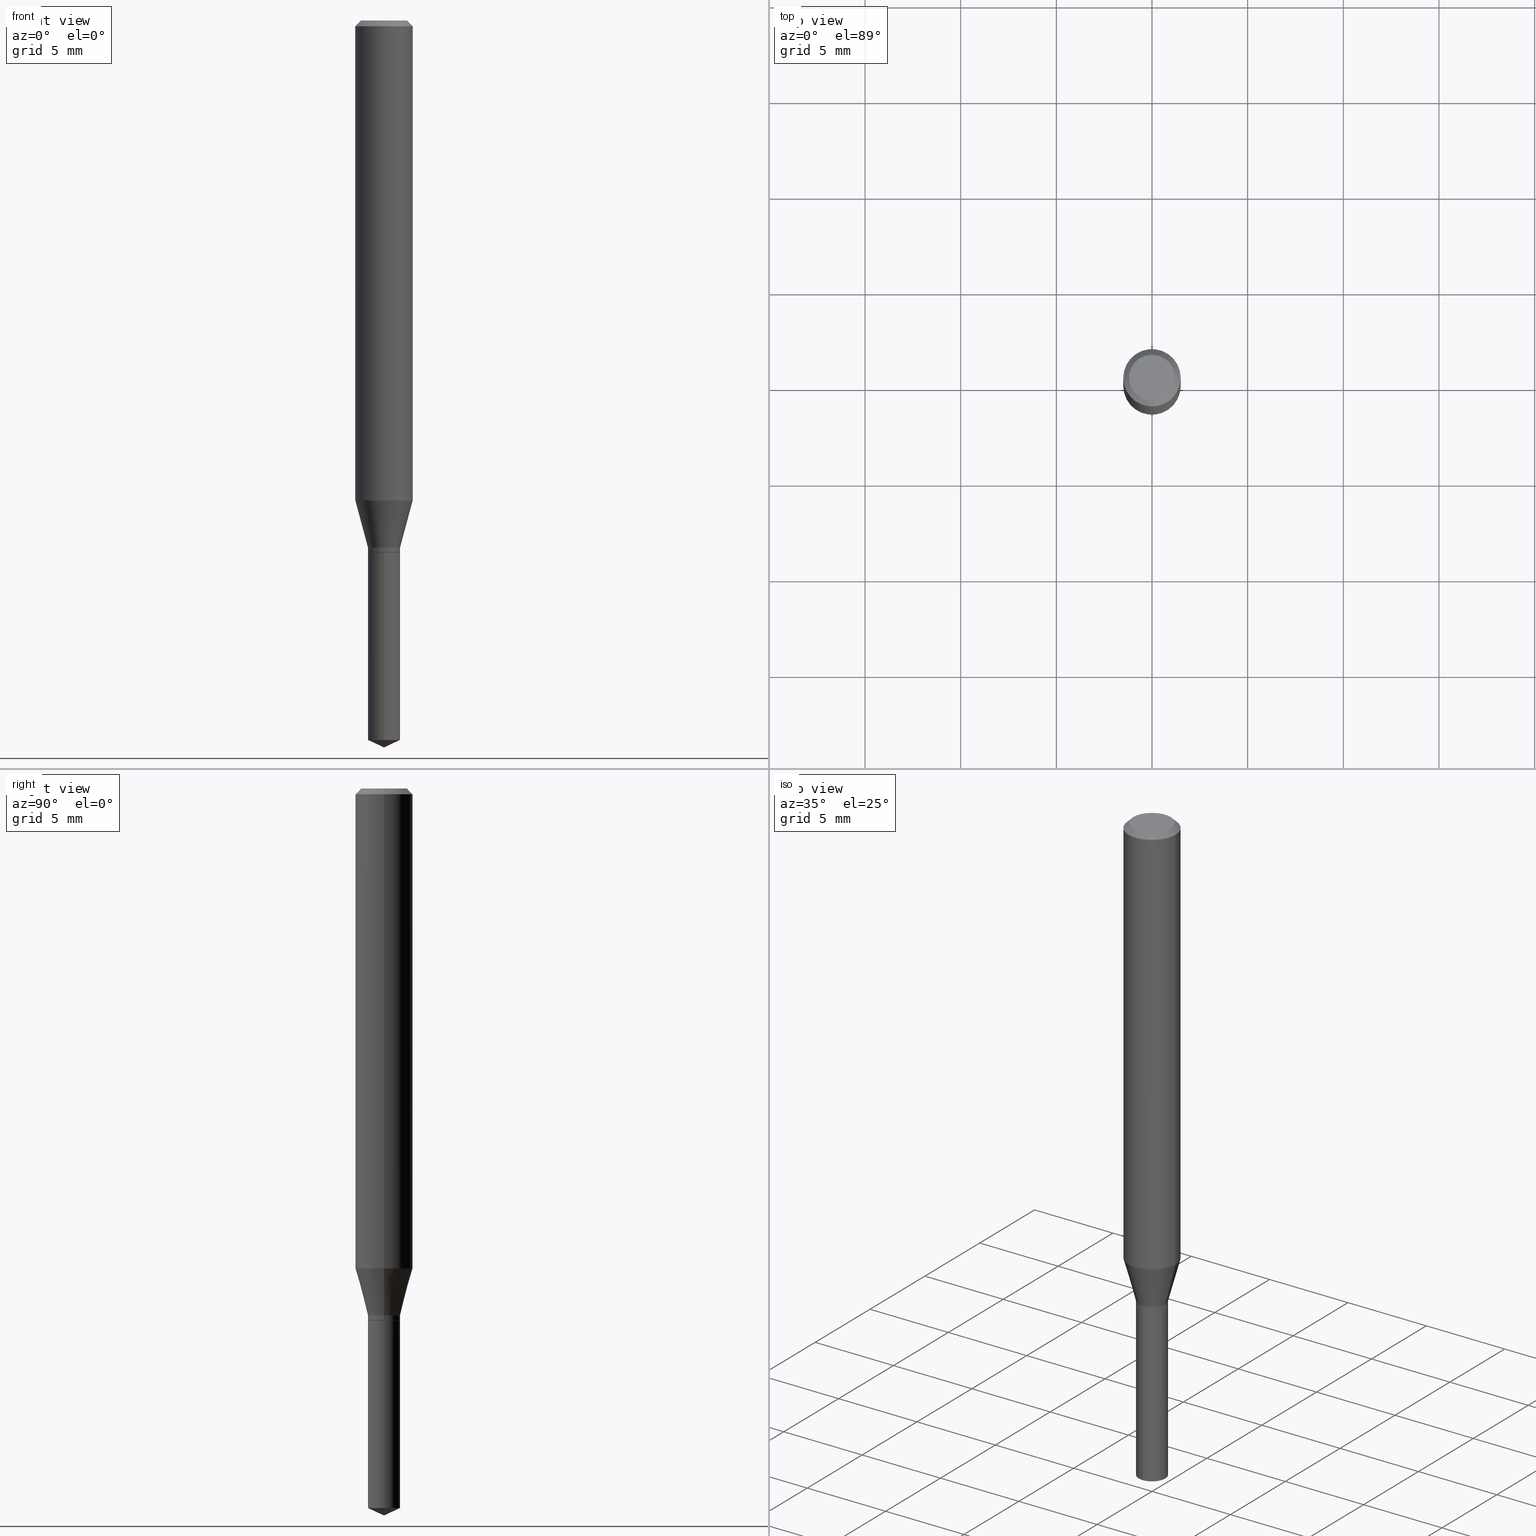
[diagram: canonical four-view strip — front | top / right | iso, engineering-drawing reading convention]
A machine part, canonical four-view strip (front | top / right | iso — engineering-drawing reading convention). The complete STEP part file that produces these views, byte-faithful:
ISO-10303-21;
HEADER;
FILE_DESCRIPTION (( 'STEP AP203' ),
    '1' );
FILE_NAME ('07562.STEP',
    '2024-04-23T22:59:34',
    ( '' ),
    ( '' ),
    'SwSTEP 2.0',
    'SolidWorks 2023',
    '' );
FILE_SCHEMA (( 'CONFIG_CONTROL_DESIGN' ));
ENDSEC;

DATA;
#1 = CYLINDRICAL_SURFACE ( 'NONE', #43, 0.03305000000000000299 ) ;
#2 = ORIENTED_EDGE ( 'NONE', *, *, #405, .F. ) ;
#3 = AXIS2_PLACEMENT_3D ( 'NONE', #215, #369, #325 ) ;
#4 = CIRCLE ( 'NONE', #400, 0.05905000000000011628 ) ;
#5 = CARTESIAN_POINT ( 'NONE',  ( -0.05905000000000006077, 4.195754854663395916E-16, -2.904631170795524694E-30 ) ) ;
#6 = DIRECTION ( 'NONE',  ( -6.982962677686265922E-15, -1.000000000000000000, 4.132901654560155873E-15 ) ) ;
#7 = ADVANCED_FACE ( 'NONE', ( #118 ), #80, .T. ) ;
#8 = DIRECTION ( 'NONE',  ( -1.000000000000000000, 6.982962677686266711E-15, 0.000000000000000000 ) ) ;
#9 = APPROVAL_ROLE ( '' ) ;
#10 = LINE ( 'NONE', #111, #487 ) ;
#11 = EDGE_CURVE ( 'NONE', #413, #382, #137, .T. ) ;
#12 = AXIS2_PLACEMENT_3D ( 'NONE', #395, #313, #77 ) ;
#13 = DIRECTION ( 'NONE',  ( -1.000000000000000000, 6.982962677686266711E-15, 0.000000000000000000 ) ) ;
#14 = ORIENTED_EDGE ( 'NONE', *, *, #135, .F. ) ;
#15 = PRODUCT_RELATED_PRODUCT_CATEGORY ( 'detail', '', ( #122 ) ) ;
#16 = CARTESIAN_POINT ( 'NONE',  ( 2.415063507530197396E-29, -3.448070630603002833E-15, -0.9875666790032088249 ) ) ;
#17 = CARTESIAN_POINT ( 'NONE',  ( 0.03305000000000000299, -2.307869164975311041E-16, 1.611576424400557166E-30 ) ) ;
#18 = DIRECTION ( 'NONE',  ( 1.000000000000000000, -6.982962677686266711E-15, 4.876185090822587894E-29 ) ) ;
#19 = AXIS2_PLACEMENT_3D ( 'NONE', #332, #216, #303 ) ;
#20 = CC_DESIGN_PERSON_AND_ORGANIZATION_ASSIGNMENT ( #385, #171, ( #445 ) ) ;
#21 = CARTESIAN_POINT ( 'NONE',  ( 2.652355467188399034E-29, -3.786860660109275425E-15, -1.084600000000000009 ) ) ;
#22 = APPLICATION_CONTEXT ( 'configuration controlled 3d designs of mechanical parts and assemblies' ) ;
#23 = CARTESIAN_POINT ( 'NONE',  ( -0.03255000000000000254, -3.587495437699799190E-15, -1.094500000000000028 ) ) ;
#24 = ORIENTED_EDGE ( 'NONE', *, *, #317, .T. ) ;
#25 = ADVANCED_BREP_SHAPE_REPRESENTATION ( '07562', ( #265, #88, #327 ), #437 ) ;
#26 = APPROVAL ( #459, 'UNSPECIFIED' ) ;
#27 = CARTESIAN_POINT ( 'NONE',  ( 0.000000000000000000, 0.000000000000000000, 0.000000000000000000 ) ) ;
#28 = AXIS2_PLACEMENT_3D ( 'NONE', #60, #246, #175 ) ;
#29 = ORIENTED_EDGE ( 'NONE', *, *, #48, .F. ) ;
#30 = CARTESIAN_POINT ( 'NONE',  ( -0.05904999999999999832, -1.325077027141029999E-15, -0.01181000000000007218 ) ) ;
#31 = ORIENTED_EDGE ( 'NONE', *, *, #342, .F. ) ;
#32 = CARTESIAN_POINT ( 'NONE',  ( 0.03305000000000000299, -4.017647576606806874E-15, -1.084600000000000009 ) ) ;
#33 = ORIENTED_EDGE ( 'NONE', *, *, #457, .T. ) ;
#34 = DIRECTION ( 'NONE',  ( -2.445468806185136597E-29, 3.491481338843145583E-15, 1.000000000000000000 ) ) ;
#35 = ORIENTED_EDGE ( 'NONE', *, *, #167, .T. ) ;
#36 = AXIS2_PLACEMENT_3D ( 'NONE', #468, #165, #281 ) ;
#37 = VERTEX_POINT ( 'NONE', #235 ) ;
#38 = LINE ( 'NONE', #5, #69 ) ;
#39 = CARTESIAN_POINT ( 'NONE',  ( 2.676565608369632355E-29, -3.821426325363822773E-15, -1.094500000000000028 ) ) ;
#40 = MECHANICAL_CONTEXT ( 'NONE', #402, 'mechanical' ) ;
#41 = EDGE_CURVE ( 'NONE', #37, #56, #357, .T. ) ;
#42 = CARTESIAN_POINT ( 'NONE',  ( 2.676565608369631794E-29, -3.821426325363822773E-15, -1.094499999999999806 ) ) ;
#43 = AXIS2_PLACEMENT_3D ( 'NONE', #42, #314, #6 ) ;
#44 = APPROVAL_STATUS ( 'not_yet_approved' ) ;
#45 = EDGE_LOOP ( 'NONE', ( #142, #202, #107, #233 ) ) ;
#46 = COORDINATED_UNIVERSAL_TIME_OFFSET ( 5, 0, .BEHIND. ) ;
#47 = ORIENTED_EDGE ( 'NONE', *, *, #469, .T. ) ;
#48 = EDGE_CURVE ( 'NONE', #345, #163, #354, .T. ) ;
#49 = PERSON_AND_ORGANIZATION ( #323, #393 ) ;
#50 = DIRECTION ( 'NONE',  ( 2.438088387897960049E-29, -3.491481338843145188E-15, -1.000000000000000000 ) ) ;
#51 = APPROVAL ( #166, 'UNSPECIFIED' ) ;
#52 = CONICAL_SURFACE ( 'NONE', #67, 0.05904999999999999832, 0.7853981633974452814 ) ;
#53 = AXIS2_PLACEMENT_3D ( 'NONE', #139, #218, #294 ) ;
#54 = FACE_OUTER_BOUND ( 'NONE', #78, .T. ) ;
#55 = CARTESIAN_POINT ( 'NONE',  ( 8.265746106709734507E-48, -1.180129479067563789E-33, -3.380025165646692144E-19 ) ) ;
#56 = VERTEX_POINT ( 'NONE', #316 ) ;
#57 = ADVANCED_FACE ( 'NONE', ( #275 ), #52, .T. ) ;
#58 = CARTESIAN_POINT ( 'NONE',  ( 0.03305000000000000299, -4.050467501191931930E-15, -1.093999999999999861 ) ) ;
#59 = CONICAL_SURFACE ( 'NONE', #115, 0.05904999999999999832, 0.7853981633974452814 ) ;
#60 = CARTESIAN_POINT ( 'NONE',  ( 2.676565608369632355E-29, -3.821426325363822773E-15, -1.094500000000000028 ) ) ;
#61 = LOCAL_TIME ( 18, 59, 34.00000000000000000, #160 ) ;
#62 = DIRECTION ( 'NONE',  ( 1.000000000000000000, -6.982962677686265922E-15, 4.876176775795936353E-29 ) ) ;
#63 = ORIENTED_EDGE ( 'NONE', *, *, #317, .F. ) ;
#64 = PLANE ( 'NONE',  #19 ) ;
#65 = ORIENTED_EDGE ( 'NONE', *, *, #201, .T. ) ;
#66 = FACE_OUTER_BOUND ( 'NONE', #484, .T. ) ;
#67 = AXIS2_PLACEMENT_3D ( 'NONE', #351, #272, #8 ) ;
#68 = ORIENTED_EDGE ( 'NONE', *, *, #135, .T. ) ;
#69 = VECTOR ( 'NONE', #424, 39.37007874015748143 ) ;
#70 = DIRECTION ( 'NONE',  ( -2.445468806185136597E-29, 3.491481338843145583E-15, 1.000000000000000000 ) ) ;
#71 = EDGE_LOOP ( 'NONE', ( #255, #432, #296, #396 ) ) ;
#72 = DIRECTION ( 'NONE',  ( 0.2588190451025211281, 1.565188264969622954E-15, 0.9659258262890679791 ) ) ;
#73 = EDGE_CURVE ( 'NONE', #200, #377, #310, .T. ) ;
#74 = ORIENTED_EDGE ( 'NONE', *, *, #273, .T. ) ;
#75 = PERSON_AND_ORGANIZATION_ROLE ( 'design_owner' ) ;
#76 = ORIENTED_EDGE ( 'NONE', *, *, #201, .F. ) ;
#77 = DIRECTION ( 'NONE',  ( 1.000000000000000000, -6.982962677686269077E-15, 0.000000000000000000 ) ) ;
#78 = EDGE_LOOP ( 'NONE', ( #219, #339, #419, #371 ) ) ;
#79 = ADVANCED_FACE ( 'NONE', ( #86 ), #1, .T. ) ;
#80 = CYLINDRICAL_SURFACE ( 'NONE', #430, 0.05905000000000006077 ) ;
#81 = CALENDAR_DATE ( 2024, 23, 4 ) ;
#82 = FACE_OUTER_BOUND ( 'NONE', #177, .T. ) ;
#83 = CIRCLE ( 'NONE', #164, 0.04724000000000000421 ) ;
#84 = PERSON_AND_ORGANIZATION ( #323, #393 ) ;
#85 = ADVANCED_FACE ( 'NONE', ( #153 ), #130, .T. ) ;
#86 = FACE_OUTER_BOUND ( 'NONE', #333, .T. ) ;
#87 = DIRECTION ( 'NONE',  ( -2.445468806185136597E-29, 3.491481338843145583E-15, 1.000000000000000000 ) ) ;
#88 = MANIFOLD_SOLID_BREP ( 'Body-Move/Copy2[2]', #91 ) ;
#89 = PERSON_AND_ORGANIZATION ( #323, #393 ) ;
#90 = DIRECTION ( 'NONE',  ( -1.000000000000000000, 6.982962677686265922E-15, -4.876176775795935793E-29 ) ) ;
#91 = CLOSED_SHELL ( 'NONE', ( #162, #182, #7, #350, #429, #365, #237, #152, #57, #174, #108, #85 ) ) ;
#92 = APPROVAL_DATE_TIME ( #248, #51 ) ;
#93 = DIRECTION ( 'NONE',  ( 2.445468806185136597E-29, -3.491481338843145583E-15, -1.000000000000000000 ) ) ;
#94 = LINE ( 'NONE', #404, #343 ) ;
#95 = EDGE_LOOP ( 'NONE', ( #29, #65, #74, #261 ) ) ;
#96 = CARTESIAN_POINT ( 'NONE',  ( 0.000000000000000000, 0.000000000000000000, 0.000000000000000000 ) ) ;
#97 = CONICAL_SURFACE ( 'NONE', #28, 0.03255000000000000254, 0.7853981633972775267 ) ;
#98 = DIRECTION ( 'NONE',  ( 1.000000000000000000, -6.982962677686269077E-15, 0.000000000000000000 ) ) ;
#99 = EDGE_CURVE ( 'NONE', #482, #377, #463, .T. ) ;
#100 = ORIENTED_EDGE ( 'NONE', *, *, #469, .F. ) ;
#101 = DIRECTION ( 'NONE',  ( 6.439704144417036664E-15, 0.9063077870366532673, 0.4226182617406925024 ) ) ;
#102 = ORIENTED_EDGE ( 'NONE', *, *, #263, .T. ) ;
#103 = CARTESIAN_POINT ( 'NONE',  ( 2.652355467188399034E-29, -3.786860660109275425E-15, -1.084600000000000009 ) ) ;
#104 = ORIENTED_EDGE ( 'NONE', *, *, #397, .F. ) ;
#105 = CARTESIAN_POINT ( 'NONE',  ( 3.620978160335348637E-29, -5.169795598861106242E-15, -1.480688531897977445 ) ) ;
#106 = AXIS2_PLACEMENT_3D ( 'NONE', #426, #390, #196 ) ;
#107 = ORIENTED_EDGE ( 'NONE', *, *, #464, .T. ) ;
#108 = ADVANCED_FACE ( 'NONE', ( #82 ), #347, .F. ) ;
#109 = CARTESIAN_POINT ( 'NONE',  ( -0.05905000000000011628, -3.028495145136662552E-15, -0.9875666790032088249 ) ) ;
#110 = ORIENTED_EDGE ( 'NONE', *, *, #41, .F. ) ;
#111 = CARTESIAN_POINT ( 'NONE',  ( 0.05904999999999999832, -4.463468013801466955E-16, -0.01181000000000007218 ) ) ;
#112 = APPROVAL_DATE_TIME ( #308, #26 ) ;
#113 = ORIENTED_EDGE ( 'NONE', *, *, #397, .T. ) ;
#114 = PRODUCT_DEFINITION ( 'UNKNOWN', '', #445, #305 ) ;
#115 = AXIS2_PLACEMENT_3D ( 'NONE', #204, #93, #13 ) ;
#116 = CIRCLE ( 'NONE', #205, 0.03255000000000000254 ) ;
#117 = LENGTH_MEASURE_WITH_UNIT ( LENGTH_MEASURE( 0.02539999999999999897 ), #187 );
#118 = FACE_OUTER_BOUND ( 'NONE', #71, .T. ) ;
#119 = DIRECTION ( 'NONE',  ( 1.000000000000000000, 0.000000000000000000, 0.000000000000000000 ) ) ;
#120 = CARTESIAN_POINT ( 'NONE',  ( -0.05904999999999999832, 3.711095515056362547E-16, -0.01181000000000007218 ) ) ;
#121 = PERSON_AND_ORGANIZATION ( #323, #393 ) ;
#122 = PRODUCT ( '07562', '07562', '', ( #40 ) ) ;
#123 = VERTEX_POINT ( 'NONE', #238 ) ;
#124 = LOCAL_TIME ( 18, 59, 34.00000000000000000, #46 ) ;
#125 = DIRECTION ( 'NONE',  ( -6.982962677686267499E-15, -1.000000000000000000, 3.520397390770430993E-15 ) ) ;
#126 = FACE_OUTER_BOUND ( 'NONE', #298, .T. ) ;
#127 = CALENDAR_DATE ( 2024, 23, 4 ) ;
#128 = LINE ( 'NONE', #436, #383 ) ;
#129 = EDGE_CURVE ( 'NONE', #447, #200, #10, .T. ) ;
#130 = CONICAL_SURFACE ( 'NONE', #277, 0.03255000000000000254, 0.7853981633972775267 ) ;
#131 = AXIS2_PLACEMENT_3D ( 'NONE', #297, #222, #260 ) ;
#132 = DIRECTION ( 'NONE',  ( 1.000000000000000000, -6.982962677686269077E-15, 0.000000000000000000 ) ) ;
#133 = CALENDAR_DATE ( 2024, 23, 4 ) ;
#134 = CARTESIAN_POINT ( 'NONE',  ( -0.03305000000000000299, -3.568436248233125067E-15, -1.084600000000000009 ) ) ;
#135 = EDGE_CURVE ( 'NONE', #413, #267, #94, .T. ) ;
#136 = CARTESIAN_POINT ( 'NONE',  ( 2.652355467188399034E-29, -3.786860660109275425E-15, -1.084600000000000009 ) ) ;
#137 = CIRCLE ( 'NONE', #156, 0.03255000000000000254 ) ;
#138 = AXIS2_PLACEMENT_3D ( 'NONE', #103, #34, #176 ) ;
#139 = CARTESIAN_POINT ( 'NONE',  ( 2.652355467188399034E-29, -3.786860660109275425E-15, -1.084600000000000009 ) ) ;
#140 = ORIENTED_EDGE ( 'NONE', *, *, #326, .F. ) ;
#141 = DIRECTION ( 'NONE',  ( -6.982962677686265922E-15, -1.000000000000000000, 0.000000000000000000 ) ) ;
#142 = ORIENTED_EDGE ( 'NONE', *, *, #249, .F. ) ;
#143 = DIRECTION ( 'NONE',  ( -2.445470214571802396E-29, 3.491479321953280158E-15, 1.000000000000000000 ) ) ;
#144 = ORIENTED_EDGE ( 'NONE', *, *, #167, .F. ) ;
#145 = CC_DESIGN_PERSON_AND_ORGANIZATION_ASSIGNMENT ( #84, #427, ( #114 ) ) ;
#146 = FACE_OUTER_BOUND ( 'NONE', #147, .T. ) ;
#147 = EDGE_LOOP ( 'NONE', ( #104, #289, #486 ) ) ;
#148 = APPROVAL_PERSON_ORGANIZATION ( #49, #51, #9 ) ;
#149 = CC_DESIGN_PERSON_AND_ORGANIZATION_ASSIGNMENT ( #89, #358, ( #240 ) ) ;
#150 = ORIENTED_EDGE ( 'NONE', *, *, #450, .T. ) ;
#151 = DIRECTION ( 'NONE',  ( 0.000000000000000000, 0.000000000000000000, 1.000000000000000000 ) ) ;
#152 = ADVANCED_FACE ( 'NONE', ( #434 ), #433, .T. ) ;
#153 = FACE_OUTER_BOUND ( 'NONE', #341, .T. ) ;
#154 = CALENDAR_DATE ( 2024, 23, 4 ) ;
#155 = ORIENTED_EDGE ( 'NONE', *, *, #129, .T. ) ;
#156 = AXIS2_PLACEMENT_3D ( 'NONE', #39, #356, #232 ) ;
#157 = VECTOR ( 'NONE', #456, 39.37007874015748143 ) ;
#158 = CARTESIAN_POINT ( 'NONE',  ( 3.658667988020872822E-29, -5.223602213574301462E-15, -1.496099999999999985 ) ) ;
#159 = CARTESIAN_POINT ( 'NONE',  ( 2.676565608369632355E-29, -3.821426325363822773E-15, -1.094500000000000028 ) ) ;
#160 = COORDINATED_UNIVERSAL_TIME_OFFSET ( 5, 0, .BEHIND. ) ;
#161 = DIRECTION ( 'NONE',  ( -2.445468806185136597E-29, 3.491481338843145583E-15, 1.000000000000000000 ) ) ;
#162 = ADVANCED_FACE ( 'NONE', ( #242 ), #97, .T. ) ;
#163 = VERTEX_POINT ( 'NONE', #134 ) ;
#164 = AXIS2_PLACEMENT_3D ( 'NONE', #55, #209, #18 ) ;
#165 = DIRECTION ( 'NONE',  ( -2.445468806185136597E-29, 3.491481338843145583E-15, 1.000000000000000000 ) ) ;
#166 = APPROVAL_STATUS ( 'not_yet_approved' ) ;
#167 = EDGE_CURVE ( 'NONE', #447, #482, #467, .T. ) ;
#168 = DIRECTION ( 'NONE',  ( -2.445468806185136597E-29, 3.491481338843145583E-15, 1.000000000000000000 ) ) ;
#169 = DIRECTION ( 'NONE',  ( -2.445468806185136877E-29, 3.491481338843145188E-15, 1.000000000000000000 ) ) ;
#170 = AXIS2_PLACEMENT_3D ( 'NONE', #466, #309, #241 ) ;
#171 = PERSON_AND_ORGANIZATION_ROLE ( 'creator' ) ;
#172 = APPROVAL_PERSON_ORGANIZATION ( #306, #26, #389 ) ;
#173 = CARTESIAN_POINT ( 'NONE',  ( 0.05904999999999999832, -4.535783407291118600E-16, -0.01181000000000007218 ) ) ;
#174 = ADVANCED_FACE ( 'NONE', ( #474 ), #360, .F. ) ;
#175 = DIRECTION ( 'NONE',  ( 1.000000000000000000, -6.982962677686268288E-15, 0.000000000000000000 ) ) ;
#176 = DIRECTION ( 'NONE',  ( 1.000000000000000000, -6.982962677686269077E-15, 0.000000000000000000 ) ) ;
#177 = EDGE_LOOP ( 'NONE', ( #443, #140 ) ) ;
#178 = VECTOR ( 'NONE', #271, 39.37007874015748143 ) ;
#179 = DIRECTION ( 'NONE',  ( -6.982962677686265922E-15, -1.000000000000000000, 4.132901654560155873E-15 ) ) ;
#180 = ORIENTED_EDGE ( 'NONE', *, *, #73, .T. ) ;
#181 = DIRECTION ( 'NONE',  ( -2.445470214571802116E-29, 3.491479321953280158E-15, 1.000000000000000000 ) ) ;
#182 = ADVANCED_FACE ( 'NONE', ( #126 ), #59, .T. ) ;
#183 = EDGE_LOOP ( 'NONE', ( #455, #337, #217, #409 ) ) ;
#184 = CARTESIAN_POINT ( 'NONE',  ( -2.307869164975043322E-16, -0.03305000000000381938, -1.094499999999999806 ) ) ;
#185 = ORIENTED_EDGE ( 'NONE', *, *, #475, .F. ) ;
#186 = CC_DESIGN_DATE_AND_TIME_ASSIGNMENT ( #318, #208, ( #240 ) ) ;
#187 =( LENGTH_UNIT ( ) NAMED_UNIT ( * ) SI_UNIT ( $, .METRE. ) );
#188 = VECTOR ( 'NONE', #192, 39.37007874015748143 ) ;
#189 = ORIENTED_EDGE ( 'NONE', *, *, #129, .F. ) ;
#190 = CIRCLE ( 'NONE', #12, 0.03305000000000000299 ) ;
#191 = EDGE_CURVE ( 'NONE', #490, #264, #401, .T. ) ;
#192 = DIRECTION ( 'NONE',  ( -2.445470214571802396E-29, 3.491479321953280158E-15, 1.000000000000000000 ) ) ;
#193 = APPLICATION_PROTOCOL_DEFINITION ( 'international standard', 'config_control_design', 1994, #402 ) ;
#194 = CARTESIAN_POINT ( 'NONE',  ( -0.03305000000000000299, 2.348343741687131327E-16, -1.625708047329246506E-30 ) ) ;
#195 =( NAMED_UNIT ( * ) SI_UNIT ( $, .STERADIAN. ) SOLID_ANGLE_UNIT ( ) );
#196 = DIRECTION ( 'NONE',  ( 1.000000000000000000, -6.982962677686266711E-15, 0.000000000000000000 ) ) ;
#197 = CIRCLE ( 'NONE', #36, 0.03305000000000000299 ) ;
#198 = CIRCLE ( 'NONE', #214, 0.03305000000000000299 ) ;
#199 = APPROVAL_ROLE ( '' ) ;
#200 = VERTEX_POINT ( 'NONE', #173 ) ;
#201 = EDGE_CURVE ( 'NONE', #345, #267, #197, .T. ) ;
#202 = ORIENTED_EDGE ( 'NONE', *, *, #312, .T. ) ;
#203 = SECURITY_CLASSIFICATION_LEVEL ( 'unclassified' ) ;
#204 = CARTESIAN_POINT ( 'NONE',  ( 2.888098660104664204E-31, -4.123439461173780263E-17, -0.01181000000000007218 ) ) ;
#205 = AXIS2_PLACEMENT_3D ( 'NONE', #372, #340, #252 ) ;
#206 = EDGE_CURVE ( 'NONE', #123, #56, #392, .T. ) ;
#207 = CARTESIAN_POINT ( 'NONE',  ( 3.658664905062460986E-29, -5.223606628546217219E-15, -1.496099999999999985 ) ) ;
#208 = DATE_TIME_ROLE ( 'classification_date' ) ;
#209 = DIRECTION ( 'NONE',  ( -2.445468806185136597E-29, 3.491481338843145583E-15, 1.000000000000000000 ) ) ;
#210 = ORIENTED_EDGE ( 'NONE', *, *, #11, .T. ) ;
#211 = DIRECTION ( 'NONE',  ( -6.982962677686265922E-15, -1.000000000000000000, 4.132901654560155873E-15 ) ) ;
#212 = UNCERTAINTY_MEASURE_WITH_UNIT (LENGTH_MEASURE( 1.000000000000000082E-05 ), #461, 'distance_accuracy_value', 'NONE');
#213 = VECTOR ( 'NONE', #428, 39.37007874015748143 ) ;
#214 = AXIS2_PLACEMENT_3D ( 'NONE', #330, #370, #141 ) ;
#215 = CARTESIAN_POINT ( 'NONE',  ( 2.676565608369631794E-29, -3.821426325363822773E-15, -1.094499999999999806 ) ) ;
#216 = DIRECTION ( 'NONE',  ( 2.445470214571801836E-29, -3.491479321953280158E-15, -1.000000000000000000 ) ) ;
#217 = ORIENTED_EDGE ( 'NONE', *, *, #243, .F. ) ;
#218 = DIRECTION ( 'NONE',  ( -2.445468806185136597E-29, 3.491481338843145583E-15, 1.000000000000000000 ) ) ;
#219 = ORIENTED_EDGE ( 'NONE', *, *, #342, .T. ) ;
#220 = ADVANCED_FACE ( 'NONE', ( #288 ), #285, .T. ) ;
#221 = VECTOR ( 'NONE', #143, 39.37007874015748143 ) ;
#222 = DIRECTION ( 'NONE',  ( -2.445468806185136597E-29, 3.491481338843145583E-15, 1.000000000000000000 ) ) ;
#223 = ORIENTED_EDGE ( 'NONE', *, *, #48, .T. ) ;
#224 = CARTESIAN_POINT ( 'NONE',  ( 2.415063507530197396E-29, -3.448070630603002833E-15, -0.9875666790032088249 ) ) ;
#225 = ORIENTED_EDGE ( 'NONE', *, *, #481, .T. ) ;
#226 = DIRECTION ( 'NONE',  ( -2.445470214571802116E-29, 3.491479321953280158E-15, 1.000000000000000000 ) ) ;
#227 = EDGE_LOOP ( 'NONE', ( #210, #47, #478, #14 ) ) ;
#228 = ADVANCED_FACE ( 'NONE', ( #54 ), #328, .T. ) ;
#229 = APPROVAL_DATE_TIME ( #420, #290 ) ;
#230 = VECTOR ( 'NONE', #169, 39.37007874015748143 ) ;
#231 = VECTOR ( 'NONE', #72, 39.37007874015748854 ) ;
#232 = DIRECTION ( 'NONE',  ( 1.000000000000000000, -6.982962677686268288E-15, 0.000000000000000000 ) ) ;
#233 = ORIENTED_EDGE ( 'NONE', *, *, #457, .F. ) ;
#234 = APPLICATION_PROTOCOL_DEFINITION ( 'international standard', 'config_control_design', 1994, #22 ) ;
#235 = CARTESIAN_POINT ( 'NONE',  ( 2.348343741687493216E-16, 0.03304999999999484045, -1.480688531897977445 ) ) ;
#236 = CARTESIAN_POINT ( 'NONE',  ( -0.04724000000000000421, 3.504923541997677355E-16, -3.380025165670481712E-19 ) ) ;
#237 = ADVANCED_FACE ( 'NONE', ( #324 ), #320, .T. ) ;
#238 = CARTESIAN_POINT ( 'NONE',  ( -2.307869164975043322E-16, -0.03305000000000381938, -1.094499999999999806 ) ) ;
#239 = AXIS2_PLACEMENT_3D ( 'NONE', #16, #168, #471 ) ;
#240 = SECURITY_CLASSIFICATION ( '', '', #203 ) ;
#241 = DIRECTION ( 'NONE',  ( 1.000000000000000000, -6.982962677686265922E-15, 4.876176775795935793E-29 ) ) ;
#242 = FACE_OUTER_BOUND ( 'NONE', #227, .T. ) ;
#243 = EDGE_CURVE ( 'NONE', #380, #462, #384, .T. ) ;
#244 = CARTESIAN_POINT ( 'NONE',  ( -9.261968845786000133E-28, 1.322362114038720264E-13, 37.87397874015748300 ) ) ;
#245 = CC_DESIGN_PERSON_AND_ORGANIZATION_ASSIGNMENT ( #279, #287, ( #445 ) ) ;
#246 = DIRECTION ( 'NONE',  ( -2.445468806185136597E-29, 3.491481338843145583E-15, 1.000000000000000000 ) ) ;
#247 = CARTESIAN_POINT ( 'NONE',  ( -2.307869164974949644E-16, -0.03305000000000517940, -1.480688531897977445 ) ) ;
#248 = DATE_AND_TIME ( #133, #124 ) ;
#249 = EDGE_CURVE ( 'NONE', #163, #462, #128, .T. ) ;
#250 = DIRECTION ( 'NONE',  ( 1.000000000000000000, -6.982962677686266711E-15, 4.876176775795935793E-29 ) ) ;
#251 = LOCAL_TIME ( 18, 59, 34.00000000000000000, #274 ) ;
#252 = DIRECTION ( 'NONE',  ( 1.000000000000000000, -6.982962677686268288E-15, 0.000000000000000000 ) ) ;
#253 = ORIENTED_EDGE ( 'NONE', *, *, #280, .T. ) ;
#254 = DIRECTION ( 'NONE',  ( -2.445470214571802116E-29, 3.491479321953280158E-15, 1.000000000000000000 ) ) ;
#255 = ORIENTED_EDGE ( 'NONE', *, *, #243, .T. ) ;
#256 = FACE_OUTER_BOUND ( 'NONE', #95, .T. ) ;
#257 = ORIENTED_EDGE ( 'NONE', *, *, #326, .T. ) ;
#258 = AXIS2_PLACEMENT_3D ( 'NONE', #284, #363, #211 ) ;
#259 = AXIS2_PLACEMENT_3D ( 'NONE', #448, #408, #477 ) ;
#260 = DIRECTION ( 'NONE',  ( 1.000000000000000000, -6.982962677686265922E-15, 4.876176775795936353E-29 ) ) ;
#261 = ORIENTED_EDGE ( 'NONE', *, *, #312, .F. ) ;
#262 = LINE ( 'NONE', #418, #231 ) ;
#263 = EDGE_CURVE ( 'NONE', #482, #447, #83, .T. ) ;
#264 = VERTEX_POINT ( 'NONE', #247 ) ;
#265 = MANIFOLD_SOLID_BREP ( 'Body-Move/Copy2[1]', #374 ) ;
#266 = DATE_AND_TIME ( #81, #251 ) ;
#267 = VERTEX_POINT ( 'NONE', #58 ) ;
#268 = DATE_TIME_ROLE ( 'creation_date' ) ;
#269 = CONICAL_SURFACE ( 'NONE', #335, 84.42940631927488937, 1.134464013796318449 ) ;
#270 = ORIENTED_EDGE ( 'NONE', *, *, #331, .F. ) ;
#271 = DIRECTION ( 'NONE',  ( -2.445468806185136877E-29, 3.491481338843145188E-15, 1.000000000000000000 ) ) ;
#272 = DIRECTION ( 'NONE',  ( 2.445468806185136597E-29, -3.491481338843145583E-15, -1.000000000000000000 ) ) ;
#273 = EDGE_CURVE ( 'NONE', #267, #300, #366, .T. ) ;
#274 = COORDINATED_UNIVERSAL_TIME_OFFSET ( 5, 0, .BEHIND. ) ;
#275 = FACE_OUTER_BOUND ( 'NONE', #458, .T. ) ;
#276 = DIRECTION ( 'NONE',  ( -2.445468806185136877E-29, 3.491481338843145188E-15, 1.000000000000000000 ) ) ;
#277 = AXIS2_PLACEMENT_3D ( 'NONE', #159, #161, #386 ) ;
#278 = LOCAL_TIME ( 18, 59, 34.00000000000000000, #364 ) ;
#279 = PERSON_AND_ORGANIZATION ( #323, #393 ) ;
#280 = EDGE_CURVE ( 'NONE', #264, #123, #367, .T. ) ;
#281 = DIRECTION ( 'NONE',  ( 1.000000000000000000, -6.982962677686269077E-15, 0.000000000000000000 ) ) ;
#282 = SHAPE_DEFINITION_REPRESENTATION ( #348, #25 ) ;
#283 = DIRECTION ( 'NONE',  ( -6.328713451373382000E-15, -0.9063077870366502697, 0.4226182617406987196 ) ) ;
#284 = CARTESIAN_POINT ( 'NONE',  ( 2.676565608369631794E-29, -3.821426325363822773E-15, -1.094499999999999806 ) ) ;
#285 = CONICAL_SURFACE ( 'NONE', #442, 84.42940631927488937, 1.134464013796318449 ) ;
#286 = AXIS2_PLACEMENT_3D ( 'NONE', #105, #226, #416 ) ;
#287 = PERSON_AND_ORGANIZATION_ROLE ( 'design_supplier' ) ;
#288 = FACE_OUTER_BOUND ( 'NONE', #449, .T. ) ;
#289 = ORIENTED_EDGE ( 'NONE', *, *, #191, .T. ) ;
#290 = APPROVAL ( #44, 'UNSPECIFIED' ) ;
#291 = CARTESIAN_POINT ( 'NONE',  ( 8.265746106709734507E-48, -1.180129479067563789E-33, -3.380025165646692144E-19 ) ) ;
#292 = CARTESIAN_POINT ( 'NONE',  ( 0.05905000000000011628, -3.860414576720377754E-15, -0.9875666790032088249 ) ) ;
#293 = CC_DESIGN_SECURITY_CLASSIFICATION ( #240, ( #445 ) ) ;
#294 = DIRECTION ( 'NONE',  ( 1.000000000000000000, -6.982962677686269077E-15, 0.000000000000000000 ) ) ;
#295 = ADVANCED_FACE ( 'NONE', ( #66 ), #64, .F. ) ;
#296 = ORIENTED_EDGE ( 'NONE', *, *, #73, .F. ) ;
#297 = CARTESIAN_POINT ( 'NONE',  ( 0.000000000000000000, 0.000000000000000000, 0.000000000000000000 ) ) ;
#298 = EDGE_LOOP ( 'NONE', ( #144, #155, #180, #373 ) ) ;
#299 = FACE_OUTER_BOUND ( 'NONE', #183, .T. ) ;
#300 = VERTEX_POINT ( 'NONE', #32 ) ;
#301 = AXIS2_PLACEMENT_3D ( 'NONE', #21, #472, #132 ) ;
#302 = CIRCLE ( 'NONE', #259, 0.05904999999999999832 ) ;
#303 = DIRECTION ( 'NONE',  ( 6.982962677686265922E-15, 1.000000000000000000, -3.491479321953280158E-15 ) ) ;
#304 = ORIENTED_EDGE ( 'NONE', *, *, #263, .F. ) ;
#305 = DESIGN_CONTEXT ( 'detailed design', #22, 'design' ) ;
#306 = PERSON_AND_ORGANIZATION ( #323, #393 ) ;
#307 = ORIENTED_EDGE ( 'NONE', *, *, #99, .T. ) ;
#308 = DATE_AND_TIME ( #154, #444 ) ;
#309 = DIRECTION ( 'NONE',  ( -2.438088387897960049E-29, 3.491481338843145188E-15, 1.000000000000000000 ) ) ;
#310 = CIRCLE ( 'NONE', #106, 0.05904999999999999832 ) ;
#311 = EDGE_LOOP ( 'NONE', ( #452, #223, #270, #417 ) ) ;
#312 = EDGE_CURVE ( 'NONE', #163, #300, #431, .T. ) ;
#313 = DIRECTION ( 'NONE',  ( -2.445468806185136597E-29, 3.491481338843145583E-15, 1.000000000000000000 ) ) ;
#314 = DIRECTION ( 'NONE',  ( -2.445470214571802116E-29, 3.491479321953280158E-15, 1.000000000000000000 ) ) ;
#315 = CALENDAR_DATE ( 2024, 23, 4 ) ;
#316 = CARTESIAN_POINT ( 'NONE',  ( 2.348343741687493709E-16, 0.03304999999999617966, -1.094500000000000028 ) ) ;
#317 = EDGE_CURVE ( 'NONE', #377, #200, #302, .T. ) ;
#318 = DATE_AND_TIME ( #127, #278 ) ;
#319 = ORIENTED_EDGE ( 'NONE', *, *, #206, .T. ) ;
#320 = CONICAL_SURFACE ( 'NONE', #301, 0.03305000000000000299, 0.2617993877991498519 ) ;
#321 = CIRCLE ( 'NONE', #138, 0.03305000000000000299 ) ;
#322 = DIRECTION ( 'NONE',  ( 0.7071067811865453523, -7.319954787623248157E-15, -0.7071067811865496822 ) ) ;
#323 = PERSON ( 'UNSPECIFIED', 'UNSPECIFIED', 'UNSPECIFIED', ('UNSPECIFIED'), ('UNSPECIFIED'), ('UNSPECIFIED') ) ;
#324 = FACE_OUTER_BOUND ( 'NONE', #45, .T. ) ;
#325 = DIRECTION ( 'NONE',  ( -6.982962677686265922E-15, -1.000000000000000000, 4.132901654560155873E-15 ) ) ;
#326 = EDGE_CURVE ( 'NONE', #382, #413, #116, .T. ) ;
#327 = AXIS2_PLACEMENT_3D ( 'NONE', #346, #151, #119 ) ;
#328 = CYLINDRICAL_SURFACE ( 'NONE', #258, 0.03305000000000000299 ) ;
#329 = DIMENSIONAL_EXPONENTS ( 1.000000000000000000, 0.000000000000000000, 0.000000000000000000, 0.000000000000000000, 0.000000000000000000, 0.000000000000000000, 0.000000000000000000 ) ;
#330 = CARTESIAN_POINT ( 'NONE',  ( 3.620978160335348637E-29, -5.169795598861106242E-15, -1.480688531897977445 ) ) ;
#331 = EDGE_CURVE ( 'NONE', #300, #163, #321, .T. ) ;
#332 = CARTESIAN_POINT ( 'NONE',  ( 2.676565608369631794E-29, -3.821426325363822773E-15, -1.094499999999999806 ) ) ;
#333 = EDGE_LOOP ( 'NONE', ( #110, #150, #253, #2 ) ) ;
#334 = AXIS2_PLACEMENT_3D ( 'NONE', #291, #399, #398 ) ;
#335 = AXIS2_PLACEMENT_3D ( 'NONE', #336, #181, #451 ) ;
#336 = CARTESIAN_POINT ( 'NONE',  ( -9.261968845786000133E-28, 1.322362114038720264E-13, 37.87397874015748300 ) ) ;
#337 = ORIENTED_EDGE ( 'NONE', *, *, #249, .T. ) ;
#338 = CARTESIAN_POINT ( 'NONE',  ( 3.658668015054778287E-29, -5.223602213574301462E-15, -1.496099999999999985 ) ) ;
#339 = ORIENTED_EDGE ( 'NONE', *, *, #41, .T. ) ;
#340 = DIRECTION ( 'NONE',  ( -2.445468806185136597E-29, 3.491481338843145583E-15, 1.000000000000000000 ) ) ;
#341 = EDGE_LOOP ( 'NONE', ( #100, #257, #68, #76 ) ) ;
#342 = EDGE_CURVE ( 'NONE', #264, #37, #198, .T. ) ;
#343 = VECTOR ( 'NONE', #470, 39.37007874015748143 ) ;
#344 = APPROVAL_PERSON_ORGANIZATION ( #121, #290, #199 ) ;
#345 = VERTEX_POINT ( 'NONE', #476 ) ;
#346 = CARTESIAN_POINT ( 'NONE',  ( 0.000000000000000000, 0.000000000000000000, 0.000000000000000000 ) ) ;
#347 = PLANE ( 'NONE',  #170 ) ;
#348 = PRODUCT_DEFINITION_SHAPE ( 'NONE', 'NONE',  #114 ) ;
#349 = PERSON_AND_ORGANIZATION ( #323, #393 ) ;
#350 = ADVANCED_FACE ( 'NONE', ( #299 ), #423, .T. ) ;
#351 = CARTESIAN_POINT ( 'NONE',  ( 2.888098660104664204E-31, -4.123439461173780263E-17, -0.01181000000000007218 ) ) ;
#352 = LINE ( 'NONE', #355, #178 ) ;
#353 = VECTOR ( 'NONE', #101, 39.37007874015748854 ) ;
#354 = LINE ( 'NONE', #194, #359 ) ;
#355 = CARTESIAN_POINT ( 'NONE',  ( 0.05905000000000006077, -4.123439461173744764E-16, 2.879382386107503023E-30 ) ) ;
#356 = DIRECTION ( 'NONE',  ( -2.445468806185136597E-29, 3.491481338843145583E-15, 1.000000000000000000 ) ) ;
#357 = LINE ( 'NONE', #460, #188 ) ;
#358 = PERSON_AND_ORGANIZATION_ROLE ( 'classification_officer' ) ;
#359 = VECTOR ( 'NONE', #276, 39.37007874015748143 ) ;
#360 = PLANE ( 'NONE',  #435 ) ;
#361 = AXIS2_PLACEMENT_3D ( 'NONE', #136, #70, #98 ) ;
#362 = EDGE_LOOP ( 'NONE', ( #185, #33, #225, #63 ) ) ;
#363 = DIRECTION ( 'NONE',  ( -2.445470214571802116E-29, 3.491479321953280158E-15, 1.000000000000000000 ) ) ;
#364 = COORDINATED_UNIVERSAL_TIME_OFFSET ( 5, 0, .BEHIND. ) ;
#365 = ADVANCED_FACE ( 'NONE', ( #256 ), #446, .T. ) ;
#366 = LINE ( 'NONE', #17, #230 ) ;
#367 = LINE ( 'NONE', #184, #221 ) ;
#368 = CC_DESIGN_APPROVAL ( #26, ( #114 ) ) ;
#369 = DIRECTION ( 'NONE',  ( -2.445470214571802116E-29, 3.491479321953280158E-15, 1.000000000000000000 ) ) ;
#370 = DIRECTION ( 'NONE',  ( -2.445470214571802116E-29, 3.491479321953280158E-15, 1.000000000000000000 ) ) ;
#371 = ORIENTED_EDGE ( 'NONE', *, *, #280, .F. ) ;
#372 = CARTESIAN_POINT ( 'NONE',  ( 2.676565608369632355E-29, -3.821426325363822773E-15, -1.094500000000000028 ) ) ;
#373 = ORIENTED_EDGE ( 'NONE', *, *, #99, .F. ) ;
#374 = CLOSED_SHELL ( 'NONE', ( #228, #220, #415, #79, #295 ) ) ;
#375 = AXIS2_PLACEMENT_3D ( 'NONE', #441, #254, #179 ) ;
#376 = CARTESIAN_POINT ( 'NONE',  ( 0.04724000000000000421, -3.852183633974369345E-16, -3.380025165621689721E-19 ) ) ;
#377 = VERTEX_POINT ( 'NONE', #30 ) ;
#378 = DIRECTION ( 'NONE',  ( -2.445468806185136597E-29, 3.491481338843145583E-15, 1.000000000000000000 ) ) ;
#379 = CC_DESIGN_DATE_AND_TIME_ASSIGNMENT ( #266, #268, ( #114 ) ) ;
#380 = VERTEX_POINT ( 'NONE', #292 ) ;
#381 = LINE ( 'NONE', #465, #157 ) ;
#382 = VERTEX_POINT ( 'NONE', #23 ) ;
#383 = VECTOR ( 'NONE', #438, 39.37007874015748854 ) ;
#384 = CIRCLE ( 'NONE', #239, 0.05905000000000011628 ) ;
#385 = PERSON_AND_ORGANIZATION ( #323, #393 ) ;
#386 = DIRECTION ( 'NONE',  ( 1.000000000000000000, -6.982962677686268288E-15, 0.000000000000000000 ) ) ;
#387 = CC_DESIGN_PERSON_AND_ORGANIZATION_ASSIGNMENT ( #349, #75, ( #122 ) ) ;
#388 = DIRECTION ( 'NONE',  ( -2.445468806185136597E-29, 3.491481338843145583E-15, 1.000000000000000000 ) ) ;
#389 = APPROVAL_ROLE ( '' ) ;
#390 = DIRECTION ( 'NONE',  ( -2.445468806185136597E-29, 3.491481338843145583E-15, 1.000000000000000000 ) ) ;
#391 = COORDINATED_UNIVERSAL_TIME_OFFSET ( 5, 0, .BEHIND. ) ;
#392 = CIRCLE ( 'NONE', #3, 0.03305000000000000299 ) ;
#393 = ORGANIZATION ( 'UNSPECIFIED', 'UNSPECIFIED', '' ) ;
#394 = DIRECTION ( 'NONE',  ( 1.000000000000000000, -6.982962677686266711E-15, 4.876176775795935793E-29 ) ) ;
#395 = CARTESIAN_POINT ( 'NONE',  ( 2.675342873966538993E-29, -3.819680584694400481E-15, -1.093999999999999861 ) ) ;
#396 = ORIENTED_EDGE ( 'NONE', *, *, #481, .F. ) ;
#397 = EDGE_CURVE ( 'NONE', #490, #37, #412, .T. ) ;
#398 = DIRECTION ( 'NONE',  ( 1.000000000000000000, -6.982962677686266711E-15, 4.876185090822587894E-29 ) ) ;
#399 = DIRECTION ( 'NONE',  ( -2.445468806185136597E-29, 3.491481338843145583E-15, 1.000000000000000000 ) ) ;
#400 = AXIS2_PLACEMENT_3D ( 'NONE', #224, #378, #454 ) ;
#401 = LINE ( 'NONE', #207, #406 ) ;
#402 = APPLICATION_CONTEXT ( 'configuration controlled 3d designs of mechanical parts and assemblies' ) ;
#403 = DIRECTION ( 'NONE',  ( -2.445470214571802116E-29, 3.491479321953280158E-15, 1.000000000000000000 ) ) ;
#404 = CARTESIAN_POINT ( 'NONE',  ( 0.03255000000000000254, -4.048721760522511215E-15, -1.094500000000000028 ) ) ;
#405 = EDGE_CURVE ( 'NONE', #56, #123, #414, .T. ) ;
#406 = VECTOR ( 'NONE', #283, 39.37007874015748143 ) ;
#407 = CC_DESIGN_APPROVAL ( #51, ( #240 ) ) ;
#408 = DIRECTION ( 'NONE',  ( -2.445468806185136597E-29, 3.491481338843145583E-15, 1.000000000000000000 ) ) ;
#409 = ORIENTED_EDGE ( 'NONE', *, *, #464, .F. ) ;
#410 = CARTESIAN_POINT ( 'NONE',  ( 0.03255000000000000254, -4.048721760522511215E-15, -1.094500000000000028 ) ) ;
#411 = EDGE_LOOP ( 'NONE', ( #102, #35 ) ) ;
#412 = LINE ( 'NONE', #338, #353 ) ;
#413 = VERTEX_POINT ( 'NONE', #410 ) ;
#414 = CIRCLE ( 'NONE', #375, 0.03305000000000000299 ) ;
#415 = ADVANCED_FACE ( 'NONE', ( #146 ), #269, .T. ) ;
#416 = DIRECTION ( 'NONE',  ( -6.982962677686265922E-15, -1.000000000000000000, 0.000000000000000000 ) ) ;
#417 = ORIENTED_EDGE ( 'NONE', *, *, #273, .F. ) ;
#418 = CARTESIAN_POINT ( 'NONE',  ( 0.03305000000000000299, -4.017647576606806874E-15, -1.084600000000000009 ) ) ;
#419 = ORIENTED_EDGE ( 'NONE', *, *, #206, .F. ) ;
#420 = DATE_AND_TIME ( #315, #61 ) ;
#421 = CARTESIAN_POINT ( 'NONE',  ( 0.000000000000000000, 0.000000000000000000, 0.000000000000000000 ) ) ;
#422 = AXIS2_PLACEMENT_3D ( 'NONE', #96, #87, #250 ) ;
#423 = CONICAL_SURFACE ( 'NONE', #53, 0.03305000000000000299, 0.2617993877991498519 ) ;
#424 = DIRECTION ( 'NONE',  ( -2.445468806185136877E-29, 3.491481338843145188E-15, 1.000000000000000000 ) ) ;
#425 = ORIENTED_EDGE ( 'NONE', *, *, #191, .F. ) ;
#426 = CARTESIAN_POINT ( 'NONE',  ( 2.888098660104664204E-31, -4.123439461173780263E-17, -0.01181000000000007218 ) ) ;
#427 = PERSON_AND_ORGANIZATION_ROLE ( 'creator' ) ;
#428 = DIRECTION ( 'NONE',  ( -0.7071067811865453523, 2.468850131082234184E-15, -0.7071067811865496822 ) ) ;
#429 = ADVANCED_FACE ( 'NONE', ( #483 ), #480, .T. ) ;
#430 = AXIS2_PLACEMENT_3D ( 'NONE', #421, #388, #394 ) ;
#431 = CIRCLE ( 'NONE', #361, 0.03305000000000000299 ) ;
#432 = ORIENTED_EDGE ( 'NONE', *, *, #475, .T. ) ;
#433 = CYLINDRICAL_SURFACE ( 'NONE', #422, 0.05905000000000006077 ) ;
#434 = FACE_OUTER_BOUND ( 'NONE', #362, .T. ) ;
#435 = AXIS2_PLACEMENT_3D ( 'NONE', #439, #50, #90 ) ;
#436 = CARTESIAN_POINT ( 'NONE',  ( -0.03305000000000000299, -3.552026285940562539E-15, -1.084600000000000009 ) ) ;
#437 =( GEOMETRIC_REPRESENTATION_CONTEXT ( 3 ) GLOBAL_UNCERTAINTY_ASSIGNED_CONTEXT ( ( #212 ) ) GLOBAL_UNIT_ASSIGNED_CONTEXT ( ( #461, #489, #195 ) ) REPRESENTATION_CONTEXT ( 'NONE', 'WORKASPACE' ) );
#438 = DIRECTION ( 'NONE',  ( -0.2588190451025211281, 5.211531920934547886E-15, 0.9659258262890679791 ) ) ;
#439 = CARTESIAN_POINT ( 'NONE',  ( 4.132873053354867254E-48, -5.900647395337818946E-34, -1.690012582823346072E-19 ) ) ;
#440 = ORIENTED_EDGE ( 'NONE', *, *, #405, .T. ) ;
#441 = CARTESIAN_POINT ( 'NONE',  ( 2.676565608369631794E-29, -3.821426325363822773E-15, -1.094499999999999806 ) ) ;
#442 = AXIS2_PLACEMENT_3D ( 'NONE', #244, #403, #125 ) ;
#443 = ORIENTED_EDGE ( 'NONE', *, *, #11, .F. ) ;
#444 = LOCAL_TIME ( 18, 59, 34.00000000000000000, #391 ) ;
#445 = PRODUCT_DEFINITION_FORMATION_WITH_SPECIFIED_SOURCE ( 'ANY', '', #122, .NOT_KNOWN. ) ;
#446 = CYLINDRICAL_SURFACE ( 'NONE', #479, 0.03305000000000000299 ) ;
#447 = VERTEX_POINT ( 'NONE', #376 ) ;
#448 = CARTESIAN_POINT ( 'NONE',  ( 2.888098660104664204E-31, -4.123439461173780263E-17, -0.01181000000000007218 ) ) ;
#449 = EDGE_LOOP ( 'NONE', ( #425, #113, #31 ) ) ;
#450 = EDGE_CURVE ( 'NONE', #37, #264, #473, .T. ) ;
#451 = DIRECTION ( 'NONE',  ( -6.982962677686267499E-15, -1.000000000000000000, 3.520397390770430993E-15 ) ) ;
#452 = ORIENTED_EDGE ( 'NONE', *, *, #488, .T. ) ;
#453 = CC_DESIGN_APPROVAL ( #290, ( #445 ) ) ;
#454 = DIRECTION ( 'NONE',  ( 1.000000000000000000, -6.982962677686266711E-15, 0.000000000000000000 ) ) ;
#455 = ORIENTED_EDGE ( 'NONE', *, *, #331, .T. ) ;
#456 = DIRECTION ( 'NONE',  ( -0.7071067811864267805, 7.493145998869918709E-15, 0.7071067811866682540 ) ) ;
#457 = EDGE_CURVE ( 'NONE', #462, #380, #4, .T. ) ;
#458 = EDGE_LOOP ( 'NONE', ( #189, #304, #307, #24 ) ) ;
#459 = APPROVAL_STATUS ( 'not_yet_approved' ) ;
#460 = CARTESIAN_POINT ( 'NONE',  ( 2.348343741687398553E-16, 0.03304999999999617966, -1.094500000000000028 ) ) ;
#461 =( CONVERSION_BASED_UNIT ( 'INCH', #117 ) LENGTH_UNIT ( ) NAMED_UNIT ( #329 ) );
#462 = VERTEX_POINT ( 'NONE', #109 ) ;
#463 = LINE ( 'NONE', #120, #213 ) ;
#464 = EDGE_CURVE ( 'NONE', #300, #380, #262, .T. ) ;
#465 = CARTESIAN_POINT ( 'NONE',  ( -0.03255000000000000254, -3.590144664873910391E-15, -1.094500000000000028 ) ) ;
#466 = CARTESIAN_POINT ( 'NONE',  ( -5.306712087980847942E-30, -8.414371992131158946E-15, -1.094500000000000028 ) ) ;
#467 = CIRCLE ( 'NONE', #334, 0.04724000000000000421 ) ;
#468 = CARTESIAN_POINT ( 'NONE',  ( 2.675342873966538993E-29, -3.819680584694400481E-15, -1.093999999999999861 ) ) ;
#469 = EDGE_CURVE ( 'NONE', #382, #345, #381, .T. ) ;
#470 = DIRECTION ( 'NONE',  ( 0.7071067811864267805, -2.468850131080992517E-15, 0.7071067811866682540 ) ) ;
#471 = DIRECTION ( 'NONE',  ( 1.000000000000000000, -6.982962677686266711E-15, 0.000000000000000000 ) ) ;
#472 = DIRECTION ( 'NONE',  ( -2.445468806185136597E-29, 3.491481338843145583E-15, 1.000000000000000000 ) ) ;
#473 = CIRCLE ( 'NONE', #286, 0.03305000000000000299 ) ;
#474 = FACE_OUTER_BOUND ( 'NONE', #411, .T. ) ;
#475 = EDGE_CURVE ( 'NONE', #462, #377, #38, .T. ) ;
#476 = CARTESIAN_POINT ( 'NONE',  ( -0.03305000000000000299, -3.568436248233125067E-15, -1.093999999999999861 ) ) ;
#477 = DIRECTION ( 'NONE',  ( 1.000000000000000000, -6.982962677686266711E-15, 0.000000000000000000 ) ) ;
#478 = ORIENTED_EDGE ( 'NONE', *, *, #488, .F. ) ;
#479 = AXIS2_PLACEMENT_3D ( 'NONE', #27, #485, #62 ) ;
#480 = CYLINDRICAL_SURFACE ( 'NONE', #131, 0.03305000000000000299 ) ;
#481 = EDGE_CURVE ( 'NONE', #380, #200, #352, .T. ) ;
#482 = VERTEX_POINT ( 'NONE', #236 ) ;
#483 = FACE_OUTER_BOUND ( 'NONE', #311, .T. ) ;
#484 = EDGE_LOOP ( 'NONE', ( #319, #440 ) ) ;
#485 = DIRECTION ( 'NONE',  ( -2.445468806185136597E-29, 3.491481338843145583E-15, 1.000000000000000000 ) ) ;
#486 = ORIENTED_EDGE ( 'NONE', *, *, #450, .F. ) ;
#487 = VECTOR ( 'NONE', #322, 39.37007874015748143 ) ;
#488 = EDGE_CURVE ( 'NONE', #267, #345, #190, .T. ) ;
#489 =( NAMED_UNIT ( * ) PLANE_ANGLE_UNIT ( ) SI_UNIT ( $, .RADIAN. ) );
#490 = VERTEX_POINT ( 'NONE', #158 ) ;
ENDSEC;
END-ISO-10303-21;
